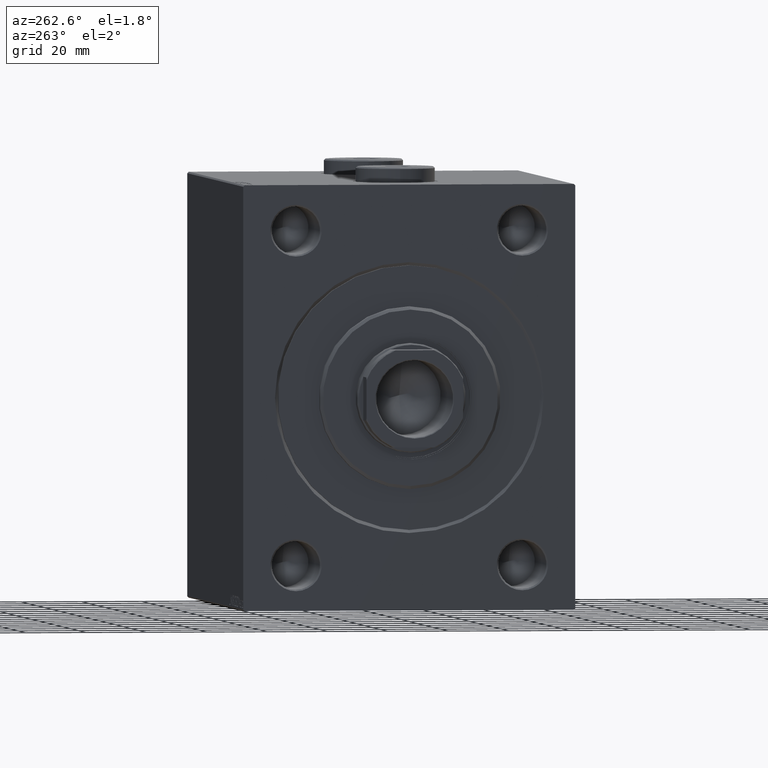
[diagram: clean part render]
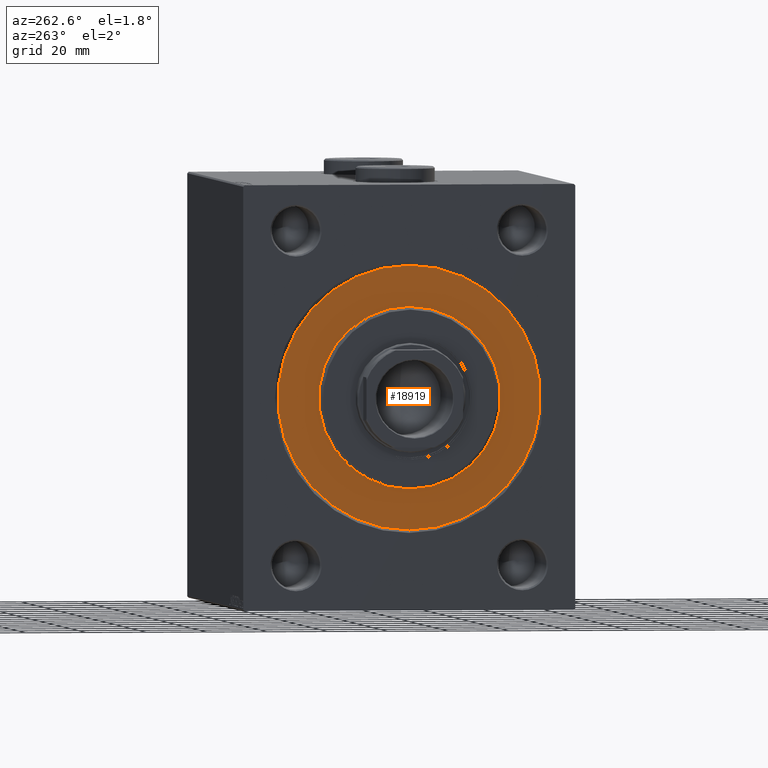
[diagram: same view with one face highlighted and labeled with its STEP entity id]
A machine part, auxiliary view. The second image highlights one B-rep face of the part: STEP entity #18919.
In plain terms, the highlighted planar face has unit normal (1, -0, -0).
Its self-contained STEP definition (entity closure, byte-faithful):
#1773 = CIRCLE ( 'NONE', #2501, 43.50000000000000000 ) ;
#2116 = DIRECTION ( 'NONE',  ( 1.000000000000000000, -0.000000000000000000, 0.000000000000000000 ) ) ;
#2501 = AXIS2_PLACEMENT_3D ( 'NONE', #24734, #13890, #32120 ) ;
#2990 = VERTEX_POINT ( 'NONE', #24137 ) ;
#4375 = CARTESIAN_POINT ( 'NONE',  ( 0.000000000000000000, 0.000000000000000000, 0.000000000000000000 ) ) ;
#8213 = AXIS2_PLACEMENT_3D ( 'NONE', #15500, #14813, #36537 ) ;
#8298 = FACE_OUTER_BOUND ( 'NONE', #19603, .T. ) ;
#9466 = EDGE_CURVE ( 'NONE', #31876, #2990, #40662, .T. ) ;
#13890 = DIRECTION ( 'NONE',  ( -1.000000000000000000, 0.000000000000000000, 0.000000000000000000 ) ) ;
#14813 = DIRECTION ( 'NONE',  ( -1.000000000000000000, 0.000000000000000000, 0.000000000000000000 ) ) ;
#15500 = CARTESIAN_POINT ( 'NONE',  ( 0.000000000000000000, 0.000000000000000000, 0.000000000000000000 ) ) ;
#16422 = CARTESIAN_POINT ( 'NONE',  ( 0.000000000000000000, 0.000000000000000000, 0.000000000000000000 ) ) ;
#16439 = EDGE_CURVE ( 'NONE', #22426, #42950, #17984, .T. ) ;
#17261 = AXIS2_PLACEMENT_3D ( 'NONE', #30271, #33284, #36772 ) ;
#17984 = CIRCLE ( 'NONE', #17261, 30.00000000000000000 ) ;
#18836 = ORIENTED_EDGE ( 'NONE', *, *, #35797, .F. ) ;
#18919 = ADVANCED_FACE ( 'NONE', ( #39254, #8298 ), #35798, .F. ) ;
#19603 = EDGE_LOOP ( 'NONE', ( #24014, #18836 ) ) ;
#20770 = CARTESIAN_POINT ( 'NONE',  ( 0.000000000000000000, 0.000000000000000000, -43.50000000000000000 ) ) ;
#22426 = VERTEX_POINT ( 'NONE', #34576 ) ;
#22547 = AXIS2_PLACEMENT_3D ( 'NONE', #16422, #2116, #37012 ) ;
#24014 = ORIENTED_EDGE ( 'NONE', *, *, #9466, .F. ) ;
#24137 = CARTESIAN_POINT ( 'NONE',  ( 0.000000000000000000, 5.327213576290986044E-15, 43.50000000000000000 ) ) ;
#24734 = CARTESIAN_POINT ( 'NONE',  ( 0.000000000000000000, 0.000000000000000000, 0.000000000000000000 ) ) ;
#25185 = EDGE_CURVE ( 'NONE', #42950, #22426, #37344, .T. ) ;
#26111 = CARTESIAN_POINT ( 'NONE',  ( 0.000000000000000000, 0.000000000000000000, 30.00000000000000000 ) ) ;
#27862 = EDGE_LOOP ( 'NONE', ( #30114, #37290 ) ) ;
#30114 = ORIENTED_EDGE ( 'NONE', *, *, #25185, .F. ) ;
#30271 = CARTESIAN_POINT ( 'NONE',  ( 0.000000000000000000, 0.000000000000000000, 0.000000000000000000 ) ) ;
#31340 = AXIS2_PLACEMENT_3D ( 'NONE', #4375, #36252, #43413 ) ;
#31876 = VERTEX_POINT ( 'NONE', #20770 ) ;
#32120 = DIRECTION ( 'NONE',  ( 0.000000000000000000, 0.000000000000000000, 1.000000000000000000 ) ) ;
#33284 = DIRECTION ( 'NONE',  ( 1.000000000000000000, -0.000000000000000000, 0.000000000000000000 ) ) ;
#34576 = CARTESIAN_POINT ( 'NONE',  ( 0.000000000000000000, 3.673940397442059178E-15, -30.00000000000000000 ) ) ;
#35797 = EDGE_CURVE ( 'NONE', #2990, #31876, #1773, .T. ) ;
#35798 = PLANE ( 'NONE',  #31340 ) ;
#36252 = DIRECTION ( 'NONE',  ( -1.000000000000000000, 0.000000000000000000, 0.000000000000000000 ) ) ;
#36537 = DIRECTION ( 'NONE',  ( 0.000000000000000000, 0.000000000000000000, 1.000000000000000000 ) ) ;
#36772 = DIRECTION ( 'NONE',  ( 0.000000000000000000, 0.000000000000000000, -1.000000000000000000 ) ) ;
#37012 = DIRECTION ( 'NONE',  ( 0.000000000000000000, 0.000000000000000000, -1.000000000000000000 ) ) ;
#37290 = ORIENTED_EDGE ( 'NONE', *, *, #16439, .F. ) ;
#37344 = CIRCLE ( 'NONE', #22547, 30.00000000000000000 ) ;
#39254 = FACE_BOUND ( 'NONE', #27862, .T. ) ;
#40662 = CIRCLE ( 'NONE', #8213, 43.50000000000000000 ) ;
#42950 = VERTEX_POINT ( 'NONE', #26111 ) ;
#43413 = DIRECTION ( 'NONE',  ( 0.000000000000000000, 0.000000000000000000, 1.000000000000000000 ) ) ;